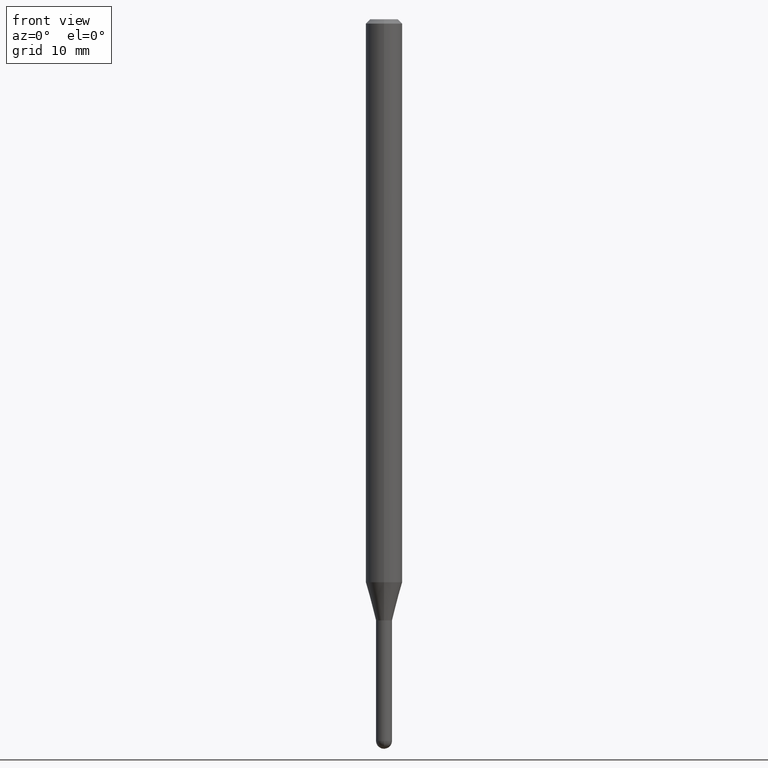
[diagram: clean part render]
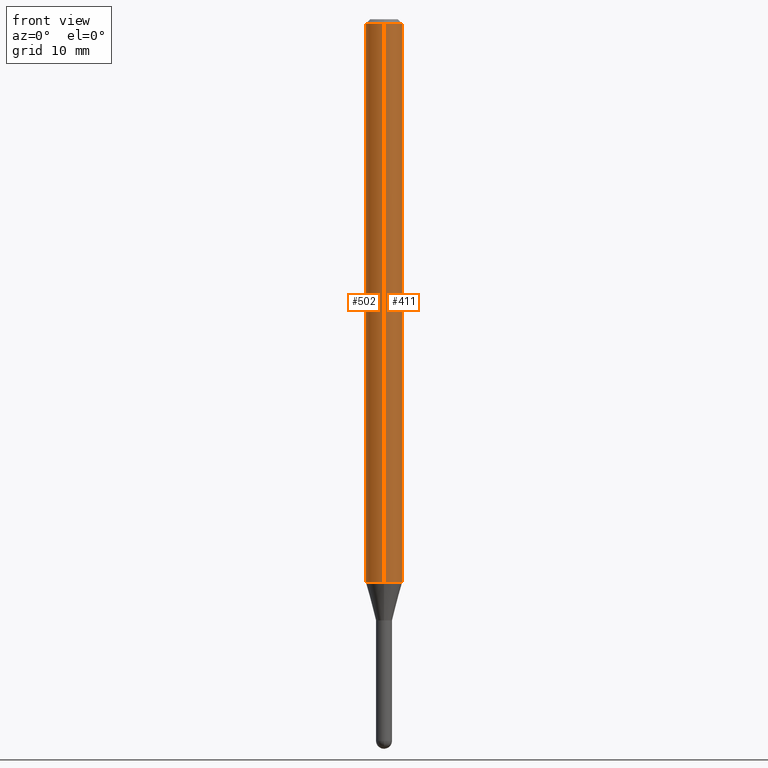
[diagram: same view with one multi-face feature highlighted, each face labeled with its STEP entity id]
A machine part, front view. The highlighted faces form ONE feature: a constant-radius fillet chain: 2 tangent blend faces with common blend radius 1.5875 mm. The faces share edges in the B-rep.
Their STEP definitions:
[1] entity #502 (Cylinder):
#14 = DIRECTION ( 'NONE',  ( -6.982962677686265922E-15, -1.000000000000000000, 4.370956789862821150E-15 ) ) ;
#29 = DIRECTION ( 'NONE',  ( -2.445457103693514043E-29, 3.491498097477213736E-15, 1.000000000000000000 ) ) ;
#40 = CIRCLE ( 'NONE', #432, 0.06250000000000000000 ) ;
#56 = CARTESIAN_POINT ( 'NONE',  ( -4.364351673553916201E-16, -0.06250000000000000000, 2.182186310923258585E-16 ) ) ;
#85 = CYLINDRICAL_SURFACE ( 'NONE', #477, 0.06250000000000000000 ) ;
#89 = CARTESIAN_POINT ( 'NONE',  ( 4.440892098501101450E-16, 0.06249999999999995143, -0.01500000000000022669 ) ) ;
#97 = CIRCLE ( 'NONE', #251, 0.06250000000000000000 ) ;
#154 = DIRECTION ( 'NONE',  ( -2.445457103693514043E-29, 3.491498097477213736E-15, 1.000000000000000000 ) ) ;
#155 = CARTESIAN_POINT ( 'NONE',  ( -4.364351673553912750E-16, -0.06250000000000005551, -0.01499999999999979128 ) ) ;
#161 = EDGE_CURVE ( 'NONE', #356, #317, #364, .T. ) ;
#162 = DIRECTION ( 'NONE',  ( -6.982962677686265922E-15, -1.000000000000000000, 3.491498097477213736E-15 ) ) ;
#168 = DIRECTION ( 'NONE',  ( -2.445457103693514043E-29, 3.491498097477213736E-15, 1.000000000000000000 ) ) ;
#174 = VECTOR ( 'NONE', #184, 39.37007874015748143 ) ;
#180 = CARTESIAN_POINT ( 'NONE',  ( 4.440892098500625669E-16, 0.06250000000000000000, -2.182186310923258585E-16 ) ) ;
#184 = DIRECTION ( 'NONE',  ( -2.445457103693514324E-29, 3.491498097477213736E-15, 1.000000000000000000 ) ) ;
#197 = CARTESIAN_POINT ( 'NONE',  ( 0.000000000000000000, 0.000000000000000000, 0.000000000000000000 ) ) ;
#203 = EDGE_CURVE ( 'NONE', #317, #206, #97, .T. ) ;
#206 = VERTEX_POINT ( 'NONE', #155 ) ;
#231 = DIRECTION ( 'NONE',  ( -6.982962677686265922E-15, -1.000000000000000000, 3.483106191921935554E-15 ) ) ;
#251 = AXIS2_PLACEMENT_3D ( 'NONE', #267, #29, #231 ) ;
#258 = EDGE_CURVE ( 'NONE', #356, #381, #40, .T. ) ;
#267 = CARTESIAN_POINT ( 'NONE',  ( 3.668185655540273570E-31, -5.237247146215822995E-17, -0.01500000000000000812 ) ) ;
#274 = ORIENTED_EDGE ( 'NONE', *, *, #258, .T. ) ;
#276 = ORIENTED_EDGE ( 'NONE', *, *, #424, .T. ) ;
#317 = VERTEX_POINT ( 'NONE', #89 ) ;
#353 = CARTESIAN_POINT ( 'NONE',  ( -4.364351673553446829E-16, -0.06250000000000677236, -1.929378221735094323 ) ) ;
#356 = VERTEX_POINT ( 'NONE', #398 ) ;
#364 = LINE ( 'NONE', #180, #174 ) ;
#374 = LINE ( 'NONE', #56, #495 ) ;
#375 = ORIENTED_EDGE ( 'NONE', *, *, #161, .F. ) ;
#380 = DIRECTION ( 'NONE',  ( -2.445457103693514324E-29, 3.491498097477213736E-15, 1.000000000000000000 ) ) ;
#381 = VERTEX_POINT ( 'NONE', #353 ) ;
#384 = ORIENTED_EDGE ( 'NONE', *, *, #203, .F. ) ;
#398 = CARTESIAN_POINT ( 'NONE',  ( 4.440892098501095534E-16, 0.06249999999999324846, -1.929378221735094767 ) ) ;
#424 = EDGE_CURVE ( 'NONE', #381, #206, #374, .T. ) ;
#432 = AXIS2_PLACEMENT_3D ( 'NONE', #489, #168, #14 ) ;
#458 = EDGE_LOOP ( 'NONE', ( #375, #274, #276, #384 ) ) ;
#477 = AXIS2_PLACEMENT_3D ( 'NONE', #197, #154, #162 ) ;
#489 = CARTESIAN_POINT ( 'NONE',  ( 4.718211678053647219E-29, -6.736420390502052226E-15, -1.929378221735094545 ) ) ;
#491 = FACE_OUTER_BOUND ( 'NONE', #458, .T. ) ;
#495 = VECTOR ( 'NONE', #380, 39.37007874015748143 ) ;
#502 = ADVANCED_FACE ( 'NONE', ( #491 ), #85, .T. ) ;
[2] entity #411 (Cylinder):
#49 = CYLINDRICAL_SURFACE ( 'NONE', #170, 0.06250000000000000000 ) ;
#51 = ORIENTED_EDGE ( 'NONE', *, *, #259, .T. ) ;
#56 = CARTESIAN_POINT ( 'NONE',  ( -4.364351673553916201E-16, -0.06250000000000000000, 2.182186310923258585E-16 ) ) ;
#78 = AXIS2_PLACEMENT_3D ( 'NONE', #200, #370, #113 ) ;
#84 = ORIENTED_EDGE ( 'NONE', *, *, #195, .F. ) ;
#89 = CARTESIAN_POINT ( 'NONE',  ( 4.440892098501101450E-16, 0.06249999999999995143, -0.01500000000000022669 ) ) ;
#104 = DIRECTION ( 'NONE',  ( -6.982962677686265922E-15, -1.000000000000000000, 3.483106191921935554E-15 ) ) ;
#113 = DIRECTION ( 'NONE',  ( -6.982962677686265922E-15, -1.000000000000000000, 4.370956789862821150E-15 ) ) ;
#140 = DIRECTION ( 'NONE',  ( -2.445457103693514043E-29, 3.491498097477213736E-15, 1.000000000000000000 ) ) ;
#155 = CARTESIAN_POINT ( 'NONE',  ( -4.364351673553912750E-16, -0.06250000000000005551, -0.01499999999999979128 ) ) ;
#156 = ORIENTED_EDGE ( 'NONE', *, *, #424, .F. ) ;
#161 = EDGE_CURVE ( 'NONE', #356, #317, #364, .T. ) ;
#166 = DIRECTION ( 'NONE',  ( -6.982962677686265922E-15, -1.000000000000000000, 3.491498097477213736E-15 ) ) ;
#170 = AXIS2_PLACEMENT_3D ( 'NONE', #204, #373, #166 ) ;
#174 = VECTOR ( 'NONE', #184, 39.37007874015748143 ) ;
#180 = CARTESIAN_POINT ( 'NONE',  ( 4.440892098500625669E-16, 0.06250000000000000000, -2.182186310923258585E-16 ) ) ;
#184 = DIRECTION ( 'NONE',  ( -2.445457103693514324E-29, 3.491498097477213736E-15, 1.000000000000000000 ) ) ;
#189 = CIRCLE ( 'NONE', #78, 0.06250000000000000000 ) ;
#195 = EDGE_CURVE ( 'NONE', #206, #317, #342, .T. ) ;
#200 = CARTESIAN_POINT ( 'NONE',  ( 4.718211678053647219E-29, -6.736420390502052226E-15, -1.929378221735094545 ) ) ;
#204 = CARTESIAN_POINT ( 'NONE',  ( 0.000000000000000000, 0.000000000000000000, 0.000000000000000000 ) ) ;
#206 = VERTEX_POINT ( 'NONE', #155 ) ;
#259 = EDGE_CURVE ( 'NONE', #381, #356, #189, .T. ) ;
#273 = EDGE_LOOP ( 'NONE', ( #51, #463, #84, #156 ) ) ;
#317 = VERTEX_POINT ( 'NONE', #89 ) ;
#342 = CIRCLE ( 'NONE', #404, 0.06250000000000000000 ) ;
#353 = CARTESIAN_POINT ( 'NONE',  ( -4.364351673553446829E-16, -0.06250000000000677236, -1.929378221735094323 ) ) ;
#356 = VERTEX_POINT ( 'NONE', #398 ) ;
#364 = LINE ( 'NONE', #180, #174 ) ;
#370 = DIRECTION ( 'NONE',  ( -2.445457103693514043E-29, 3.491498097477213736E-15, 1.000000000000000000 ) ) ;
#373 = DIRECTION ( 'NONE',  ( -2.445457103693514043E-29, 3.491498097477213736E-15, 1.000000000000000000 ) ) ;
#374 = LINE ( 'NONE', #56, #495 ) ;
#380 = DIRECTION ( 'NONE',  ( -2.445457103693514324E-29, 3.491498097477213736E-15, 1.000000000000000000 ) ) ;
#381 = VERTEX_POINT ( 'NONE', #353 ) ;
#398 = CARTESIAN_POINT ( 'NONE',  ( 4.440892098501095534E-16, 0.06249999999999324846, -1.929378221735094767 ) ) ;
#404 = AXIS2_PLACEMENT_3D ( 'NONE', #511, #140, #104 ) ;
#411 = ADVANCED_FACE ( 'NONE', ( #415 ), #49, .T. ) ;
#415 = FACE_OUTER_BOUND ( 'NONE', #273, .T. ) ;
#424 = EDGE_CURVE ( 'NONE', #381, #206, #374, .T. ) ;
#463 = ORIENTED_EDGE ( 'NONE', *, *, #161, .T. ) ;
#495 = VECTOR ( 'NONE', #380, 39.37007874015748143 ) ;
#511 = CARTESIAN_POINT ( 'NONE',  ( 3.668185655540273570E-31, -5.237247146215822995E-17, -0.01500000000000000812 ) ) ;